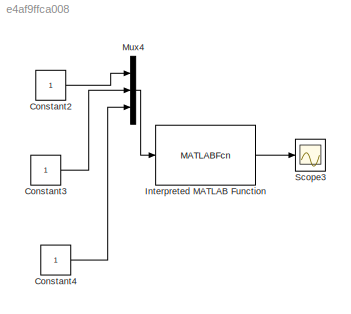
MODEL slx_e4af9ffca008
KIND model
BLOCK [Constant] Constant2
  SampleTime = 0.001
BLOCK [Constant] Constant3
  SampleTime = 0.001
BLOCK [Constant] Constant4
  SampleTime = 0.001
BLOCK [MATLABFcn] Interpreted MATLAB Function
  MATLABFcn = MPC_control
  OutputDimensions = 3
  Ports = [1, 1]
  SampleTime = 0.001
BLOCK [Mux] Mux4
  DisplayOption = bar
  Inputs = 3
  Ports = [3, 1]
BLOCK [Scope] Scope3
  DataFormat = StructureWithTime
  Floating = off
  NumInputPorts = 1
  Ports = [1]
  SampleTime = 0
  SaveName = ScopeData11
  ShowLegends = off
  YMax = 0.75
  YMin = 2.77556e-17
LINE Constant2:1 -> Mux4:1
LINE Constant3:1 -> Mux4:2
LINE Constant4:1 -> Mux4:3
LINE Interpreted MATLAB Function:1 -> Scope3:1
LINE Mux4:1 -> Interpreted MATLAB Function:1
